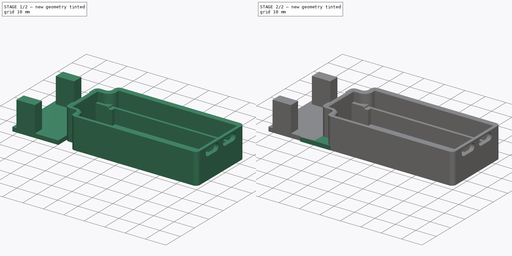
[diagram: build sequence overview — one tinted view per stage of 2, left to right]
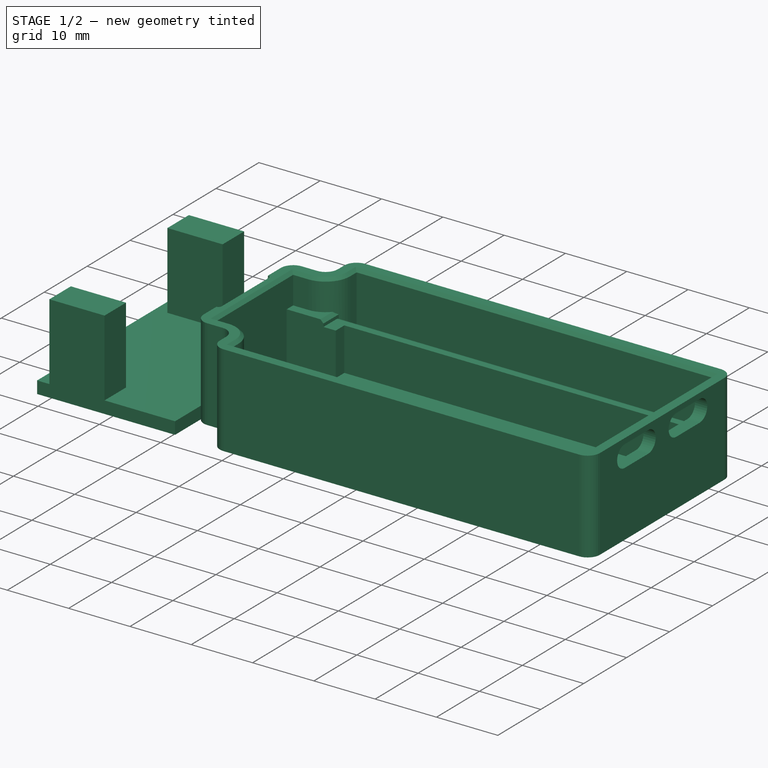
[diagram: stage 1 of 2 — iso view after this stage's code; geometry added in this stage tinted green]
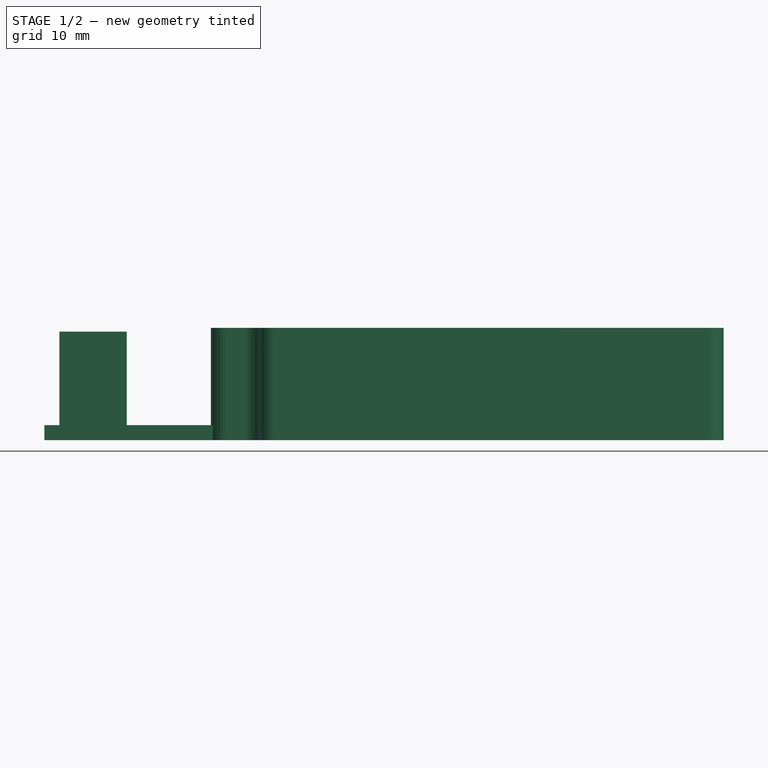
[diagram: stage 1 of 2 — front view after this stage's code; geometry added in this stage tinted green]
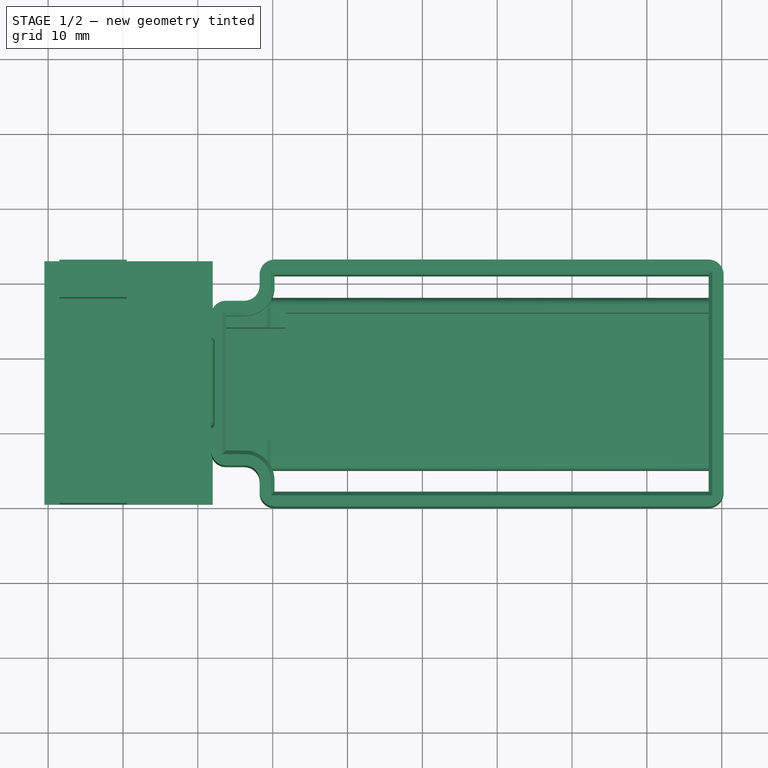
[diagram: stage 1 of 2 — top view after this stage's code; geometry added in this stage tinted green]
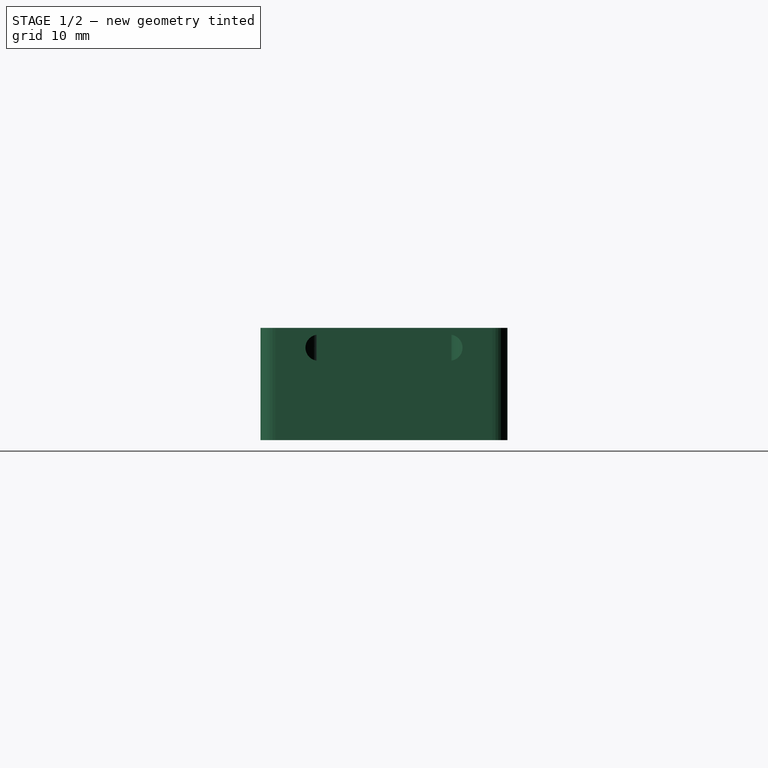
[diagram: stage 1 of 2 — right view after this stage's code; geometry added in this stage tinted green]
FCSTD DOCUMENT  (FreeCAD 1.0R39319 (Git))
Label: Case bottom with servo holder
License: All rights reserved
objects: Part::Feature×3, Part::Fuse×2, Sketcher::SketchObject×1, Part::Extrusion×1, Part::MultiFuse×1, App::Part×1
note: 9 computed .brp shape members not serialized (recipe doc carries the construction recipe); baked Part::Feature solids carry a one-line shape summary decoded from their .brp

FEATURE [Part::Fuse] Fusion
  Base = -> Servo_Mount_v004_solid001
  Tool = -> Connect002
FEATURE [Part::Fuse] Fusion002
  Base = -> Servo_Mount_v004_solid001
  Tool = -> Connect002
FEATURE [App::Part] Part
  Group = -> [Extrude,Servo_Mount_v004_solid001,Connect002,Sketch,Fusion,Fusion001,Fusion002]
  Origin = -> Origin
FEATURE [Part::Feature] Fusion003
  shape: bbox 90.75 x 33.08 x 15 mm, 667 faces (baked)
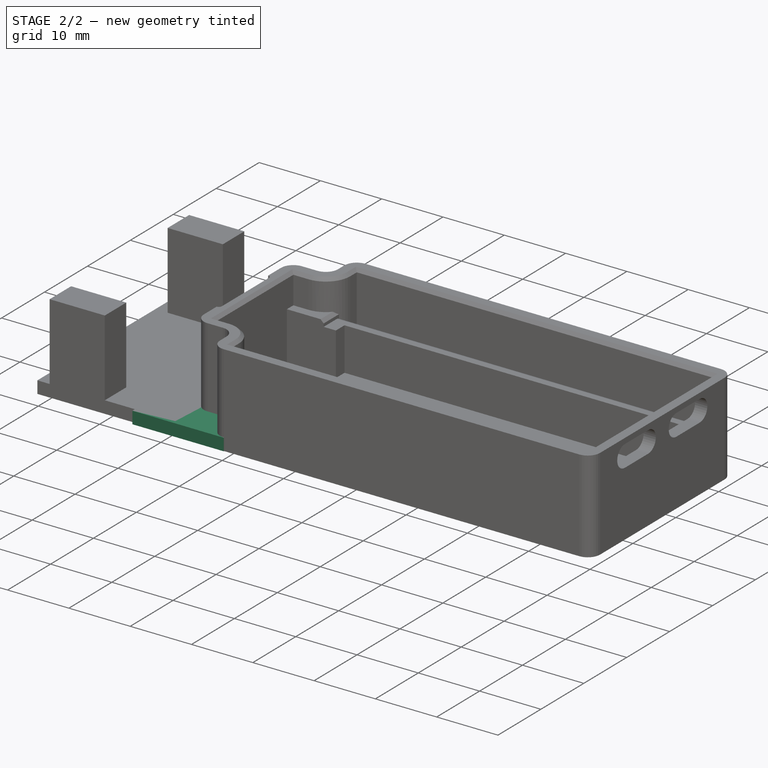
[diagram: stage 2 of 2 — iso view after this stage's code; geometry added in this stage tinted green]
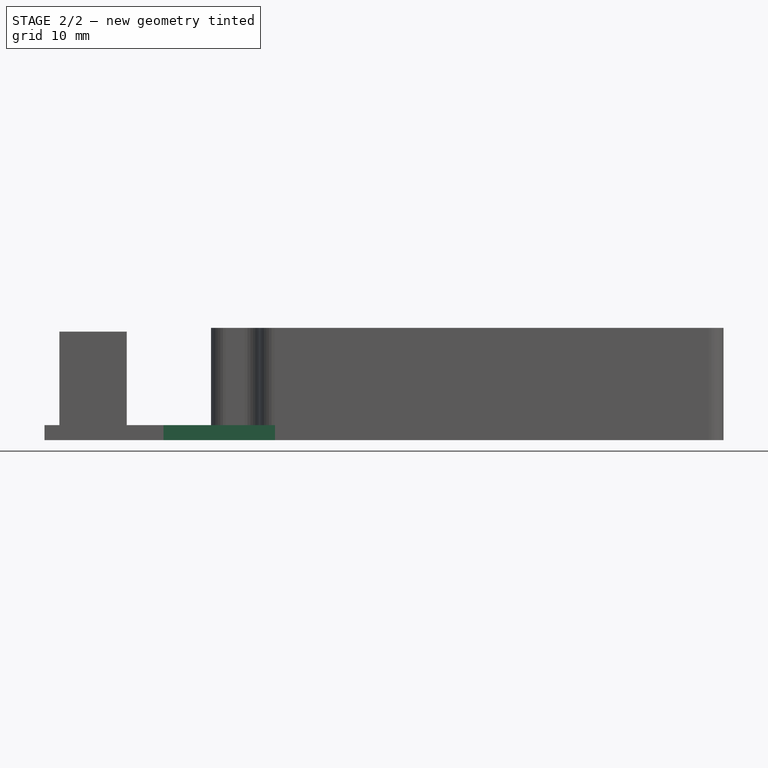
[diagram: stage 2 of 2 — front view after this stage's code; geometry added in this stage tinted green]
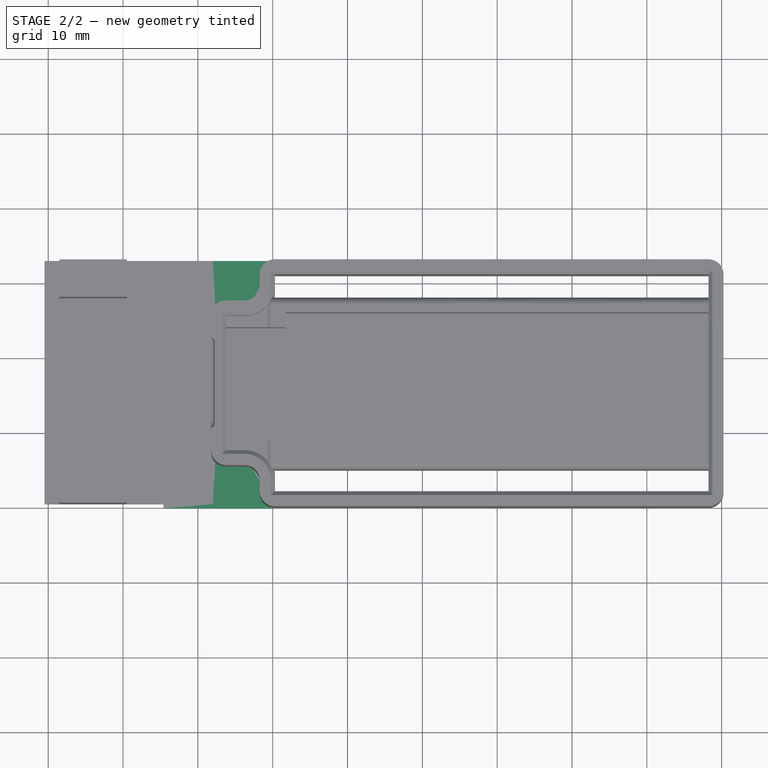
[diagram: stage 2 of 2 — top view after this stage's code; geometry added in this stage tinted green]
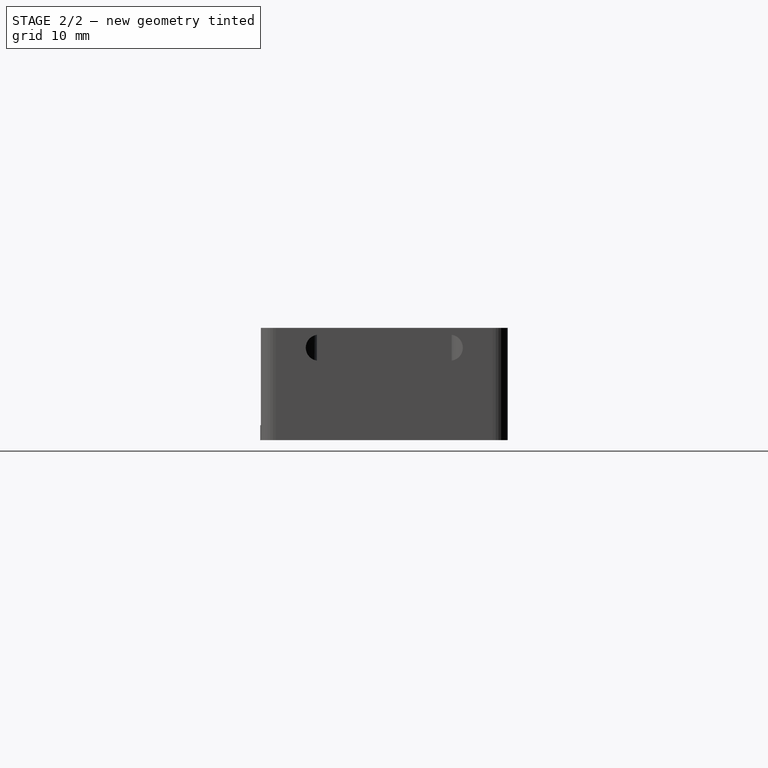
[diagram: stage 2 of 2 — right view after this stage's code; geometry added in this stage tinted green]
FEATURE [Part::Feature] Connect002
  Placement = pos=(-33,0,-7) rot=(0,0,1;0rad)
  shape: bbox 68.5 x 33 x 15 mm, 591 faces (baked)
FEATURE [Part::Feature] Servo_Mount_v004_solid001  label="Servo_Mount_v004 (Solid)001"
  Placement = pos=(-68,33,0) rot=(0,0,1;3.14159rad)
  shape: bbox 22.5 x 32.5 x 14.5 mm, 56 faces (baked)
FEATURE [Sketcher::SketchObject] Sketch
  ArcFitTolerance = 1e-06
  AttachmentSupport = -> [Servo_Mount_v004_solid001]
  FullyConstrained = false
  MakeInternals = false
  MapMode = 2
  Placement = pos=(-68,33,0) rot=(0,0,1;3.14159rad)
  sketch-geometry (4):
    g0: LineSegment StartX=8.59708 StartY=33.0815 StartZ=0 EndX=-6.31293 EndY=33.0815 EndZ=0
    g1: LineSegment StartX=-6.31293 StartY=33.0815 StartZ=0 EndX=-6.31293 EndY=0 EndZ=0
    g2: LineSegment StartX=-6.31293 StartY=0 StartZ=0 EndX=8.59708 EndY=0 EndZ=0
    g3: LineSegment StartX=8.59708 StartY=0 StartZ=0 EndX=8.59708 EndY=33.0815 EndZ=0
  constraints (9):
    c: Coincident(g0,g1)
    c: Coincident(g1,g2)
    c: Coincident(g2,g3)
    c: Coincident(g3,g0)
    c: Horizontal(g0)
    c: Horizontal(g2)
    c: Vertical(g1)
    c: Vertical(g3)
    c: PointOnObject(g1,g-1)
FEATURE [Part::Extrusion] Extrude
  Base = -> Sketch
  Dir = (0,0,1)
  DirMode = 0
  FaceMakerClass = Part::FaceMakerBullseye
  FaceMakerMode = 3
  LengthFwd = 2
  LengthRev = 0
  Placement = pos=(2,0,0) rot=(0,0,1;0rad)
  Solid = true
  Symmetric = false
FEATURE [Part::MultiFuse] Fusion001
  Shapes = -> [Fusion,Extrude]
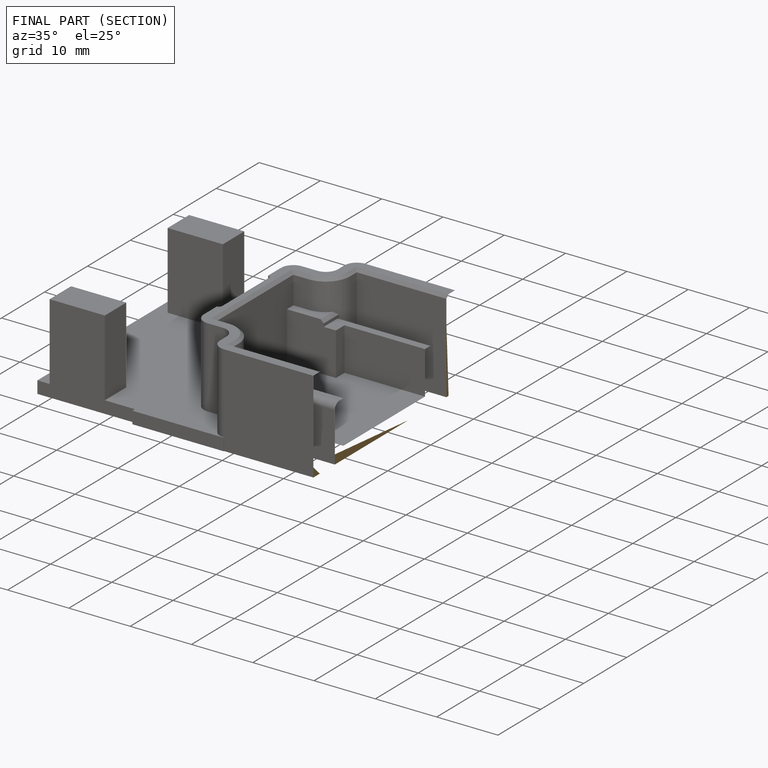
[diagram: finished part — half-section view (interior)]
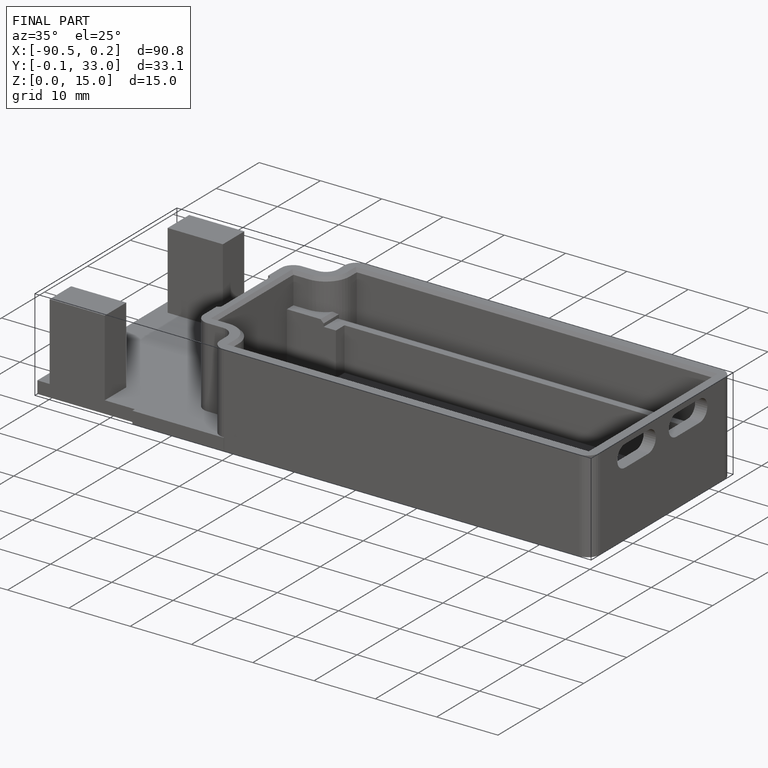
[diagram: finished part — iso view with bounding-box wireframe]
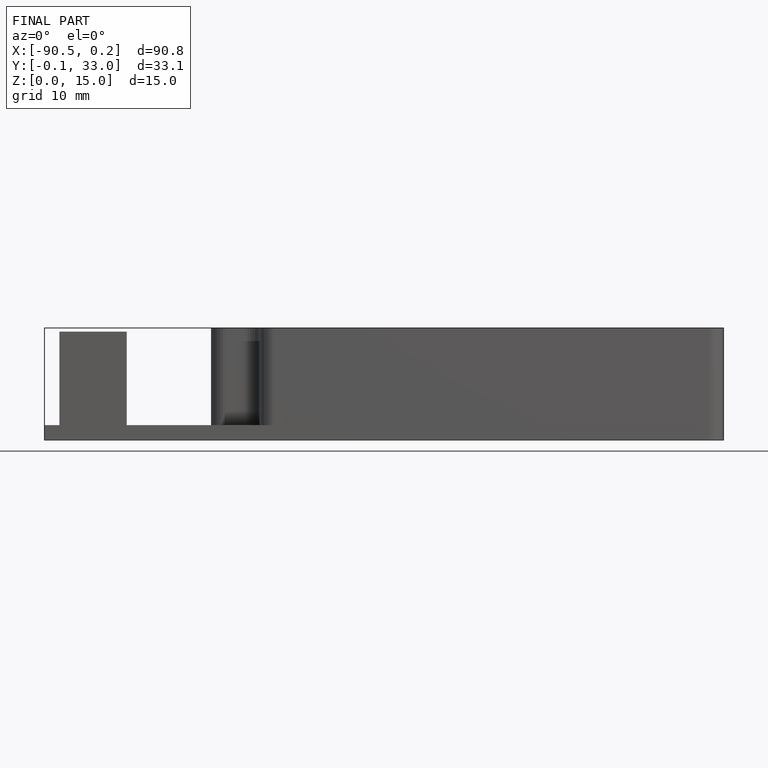
[diagram: finished part — front view with bounding-box wireframe]
